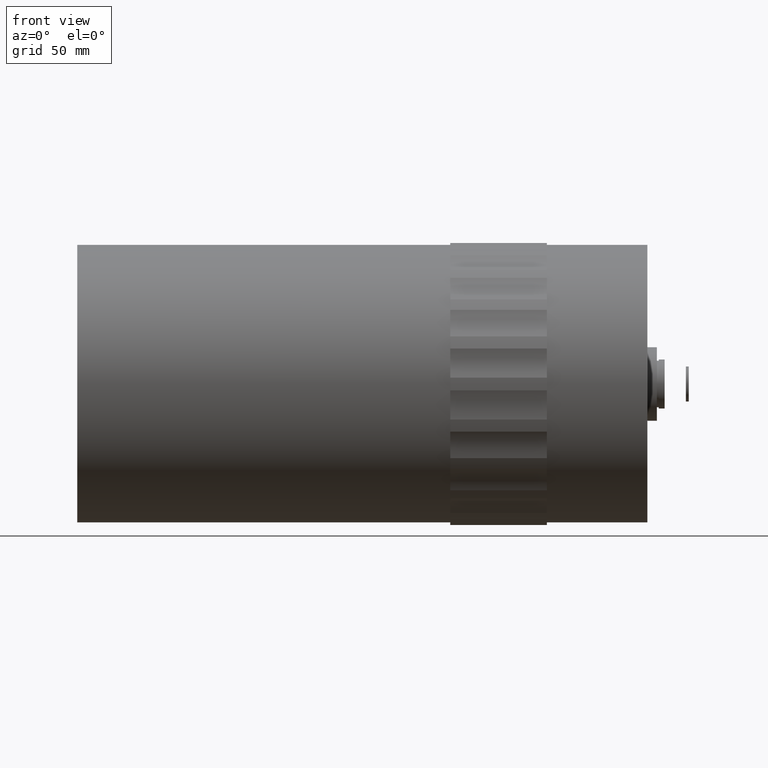
[diagram: clean part render]
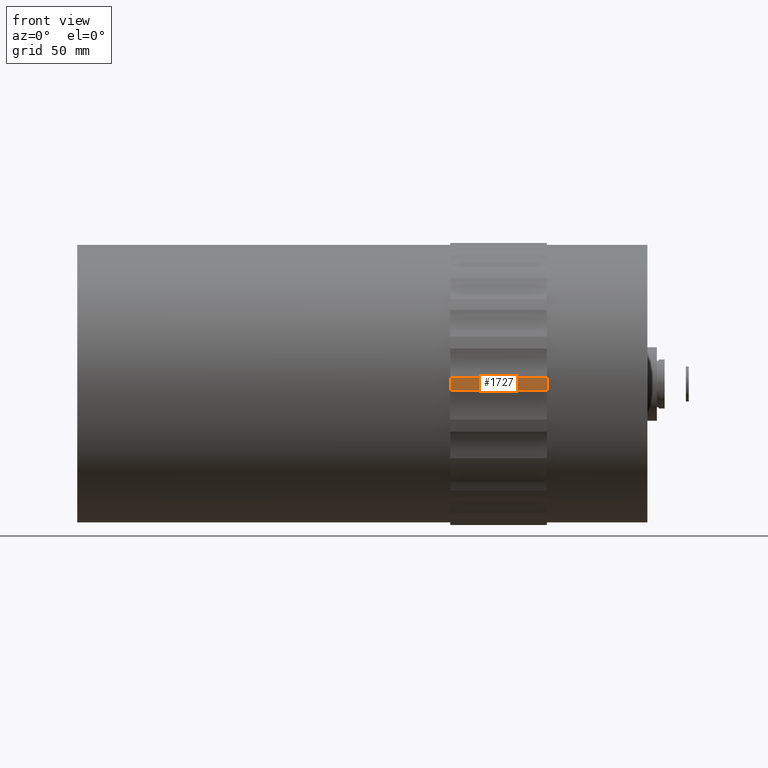
[diagram: same view with one face highlighted and labeled with its STEP entity id]
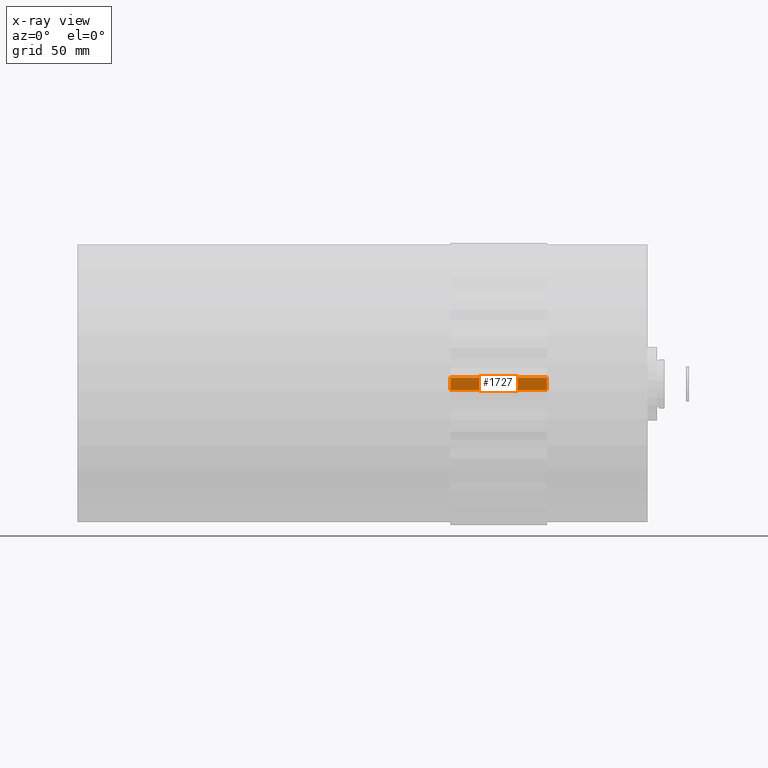
[diagram: x-ray of the same camera — body ghosted, the highlighted face saturated]
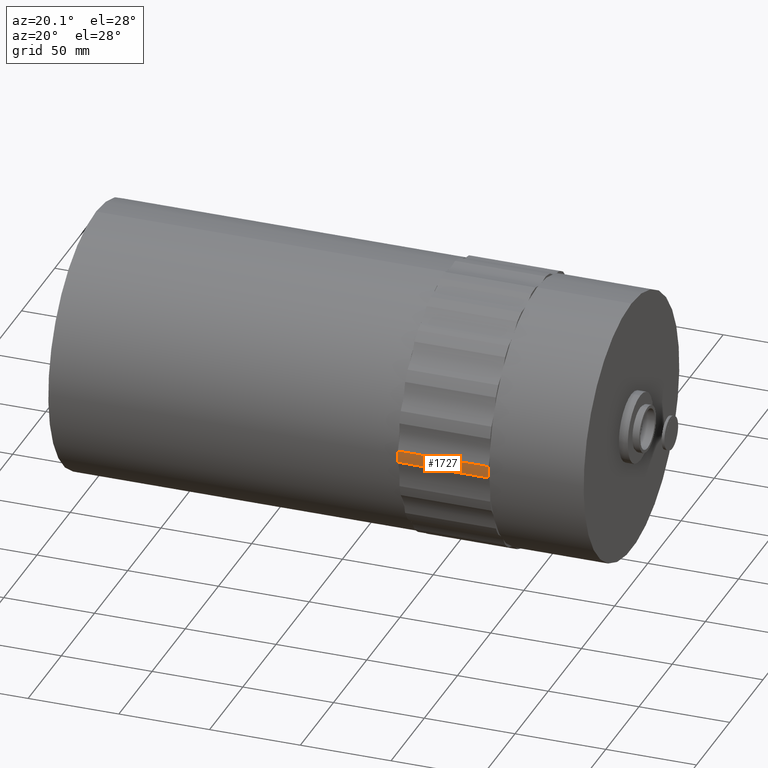
[diagram: same view with one face highlighted and labeled with its STEP entity id]
A machine part, front view. The second image highlights one B-rep face of the part: STEP entity #1727.
The next image is the same camera in x-ray: the body ghosted, the highlighted face saturated — about 0% of this face is hidden behind the body in this view.
A second angle (auxiliary view) of the same face is appended — the face is thin or edge-on in the first view.
In plain terms, the highlighted cylindrical surface (partial cylindrical patch) has radius 73 mm, axis along (-1, -0, -0).
Its self-contained STEP definition (entity closure, byte-faithful):
#95 = CARTESIAN_POINT ( 'NONE',  ( -61.14960380346137470, -72.92642711701927283, 3.276618370527299096 ) ) ;
#149 = DIRECTION ( 'NONE',  ( -1.000000000000000000, -0.000000000000000000, -0.000000000000000000 ) ) ;
#230 = CARTESIAN_POINT ( 'NONE',  ( 38.99999999999990763, -72.92642711701934388, -3.276618370526279911 ) ) ;
#293 = EDGE_CURVE ( 'NONE', #1329, #833, #2174, .T. ) ;
#447 = DIRECTION ( 'NONE',  ( 1.000000000000000000, -0.000000000000000000, -0.000000000000000000 ) ) ;
#456 = CARTESIAN_POINT ( 'NONE',  ( -11.00000000000009237, -72.92642711701927283, 3.276618370527307089 ) ) ;
#474 = EDGE_CURVE ( 'NONE', #833, #2706, #2451, .T. ) ;
#483 = DIRECTION ( 'NONE',  ( 0.000000000000000000, 0.000000000000000000, 1.000000000000000000 ) ) ;
#640 = DIRECTION ( 'NONE',  ( 1.000000000000000000, 0.000000000000000000, 0.000000000000000000 ) ) ;
#833 = VERTEX_POINT ( 'NONE', #1946 ) ;
#858 = CARTESIAN_POINT ( 'NONE',  ( 38.99999999999990763, -72.92642711701927283, 3.276618370527307089 ) ) ;
#932 = CARTESIAN_POINT ( 'NONE',  ( 38.99999999999990763, 0.000000000000000000, 0.000000000000000000 ) ) ;
#974 = DIRECTION ( 'NONE',  ( -1.000000000000000000, -0.000000000000000000, -0.000000000000000000 ) ) ;
#1027 = DIRECTION ( 'NONE',  ( 0.000000000000000000, 0.000000000000000000, 1.000000000000000000 ) ) ;
#1036 = CARTESIAN_POINT ( 'NONE',  ( -11.00000000000009237, 0.000000000000000000, 0.000000000000000000 ) ) ;
#1050 = DIRECTION ( 'NONE',  ( 0.000000000000000000, 0.000000000000000000, 1.000000000000000000 ) ) ;
#1052 = ORIENTED_EDGE ( 'NONE', *, *, #1321, .T. ) ;
#1053 = EDGE_CURVE ( 'NONE', #2706, #1372, #2097, .T. ) ;
#1321 = EDGE_CURVE ( 'NONE', #1372, #1329, #2071, .T. ) ;
#1329 = VERTEX_POINT ( 'NONE', #456 ) ;
#1345 = AXIS2_PLACEMENT_3D ( 'NONE', #1036, #640, #1050 ) ;
#1372 = VERTEX_POINT ( 'NONE', #858 ) ;
#1509 = VECTOR ( 'NONE', #447, 1000.000000000000000 ) ;
#1698 = FACE_OUTER_BOUND ( 'NONE', #1833, .T. ) ;
#1721 = ORIENTED_EDGE ( 'NONE', *, *, #474, .T. ) ;
#1727 = ADVANCED_FACE ( 'NONE', ( #1698 ), #1885, .T. ) ;
#1816 = DIRECTION ( 'NONE',  ( -1.000000000000000000, -0.000000000000000000, -0.000000000000000000 ) ) ;
#1833 = EDGE_LOOP ( 'NONE', ( #2474, #1052, #2618, #1721 ) ) ;
#1885 = CYLINDRICAL_SURFACE ( 'NONE', #2553, 73.00000000000001421 ) ;
#1898 = CARTESIAN_POINT ( 'NONE',  ( -61.14960380346137470, 0.000000000000000000, 0.000000000000000000 ) ) ;
#1946 = CARTESIAN_POINT ( 'NONE',  ( -11.00000000000009237, -72.92642711701932967, -3.276618370526293234 ) ) ;
#1999 = VECTOR ( 'NONE', #974, 1000.000000000000000 ) ;
#2067 = CARTESIAN_POINT ( 'NONE',  ( 38.99999999999990763, -72.92642711701932967, -3.276618370526272361 ) ) ;
#2071 = LINE ( 'NONE', #95, #1999 ) ;
#2097 = CIRCLE ( 'NONE', #2316, 73.00000000000001421 ) ;
#2174 = CIRCLE ( 'NONE', #1345, 73.00000000000001421 ) ;
#2316 = AXIS2_PLACEMENT_3D ( 'NONE', #932, #1816, #483 ) ;
#2451 = LINE ( 'NONE', #230, #1509 ) ;
#2474 = ORIENTED_EDGE ( 'NONE', *, *, #1053, .T. ) ;
#2553 = AXIS2_PLACEMENT_3D ( 'NONE', #1898, #149, #1027 ) ;
#2618 = ORIENTED_EDGE ( 'NONE', *, *, #293, .T. ) ;
#2706 = VERTEX_POINT ( 'NONE', #2067 ) ;